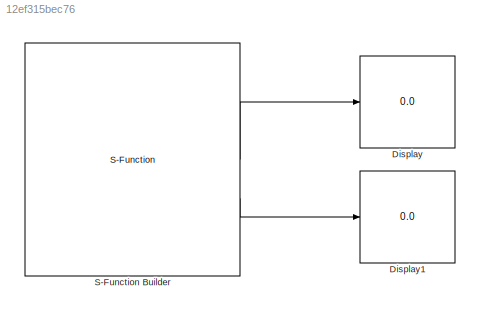
MODEL slx_12ef315bec76
KIND model
CONFIG AbsTol = auto
CONFIG EnableMultiTasking = on
CONFIG FixedStep = auto
CONFIG MaxStep = auto
CONFIG MinStep = auto
CONFIG RelTol = 1e-3
CONFIG SampleTimeConstraint = Unconstrained
CONFIG SolverName = FixedStepAuto
CONFIG StartTime = 0.0
CONFIG StopTime = inf
BLOCK [Display] Display
  Decimation = 1
BLOCK [Display] Display1
  Decimation = 1
BLOCK [S-Function] S-Function Builder
  CopyFcn = set_param(gcbh,'LinkStatus','none')
  EnableBusSupport = off
  FunctionName = Sensores5_VL53L0X_VL53L1X_I2C
  InitFcn = try, set_param(gcb,'FunctionName','Sensores5_VL53L0X_VL53L1X_I2C'), end
  OpenFcn = sfunctionwizard(gcbh)
  PreSaveFcn = try, set_param(gcb,'FunctionName','Sensores5_VL53L0X_VL53L1X_I2C'), end
  SFcnIsStateOwnerBlock = off
  SFunctionDeploymentMode = off
  SFunctionModules = Sensores5_VL53L0X_VL53L1X_I2C_wrapper
LINE S-Function Builder:1 -> Display:1
LINE S-Function Builder:2 -> Display1:1
